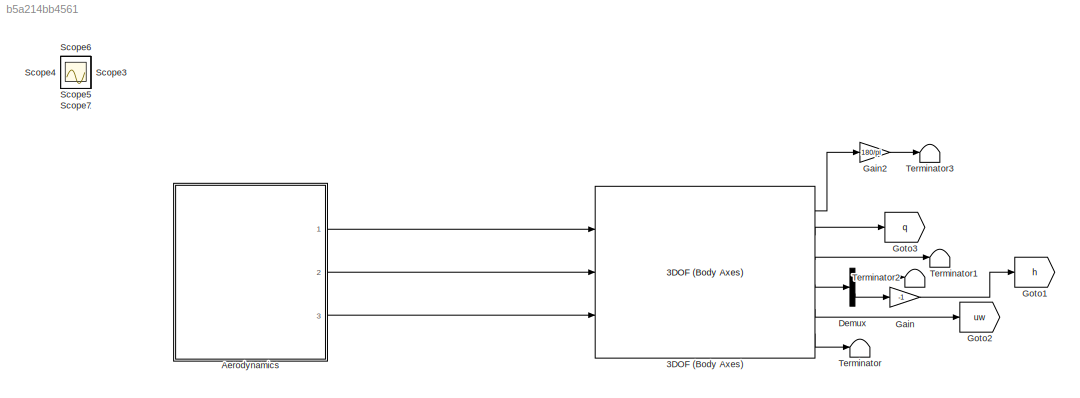
MODEL slx_b5a214bb4561
KIND model
CONFIG AbsTol = auto
CONFIG FixedStep = auto
CONFIG MaxStep = auto
CONFIG MinStep = auto
CONFIG RelTol = 1e-3
CONFIG SampleTimeConstraint = Unconstrained
CONFIG Solver = VariableStepAuto
CONFIG SolverMode = Auto
CONFIG SolverName = VariableStepAuto
CONFIG StartTime = 0.0
CONFIG StopTime = 100
BLOCK [Reference] 3DOF (Body Axes)  REF=aerolib3dof2/3DOF (Body Axes)
  Ports = [3, 6]
  SourceBlock = aerolib3dof2/3DOF (Body Axes)
  SourceType = 3DOF EoM
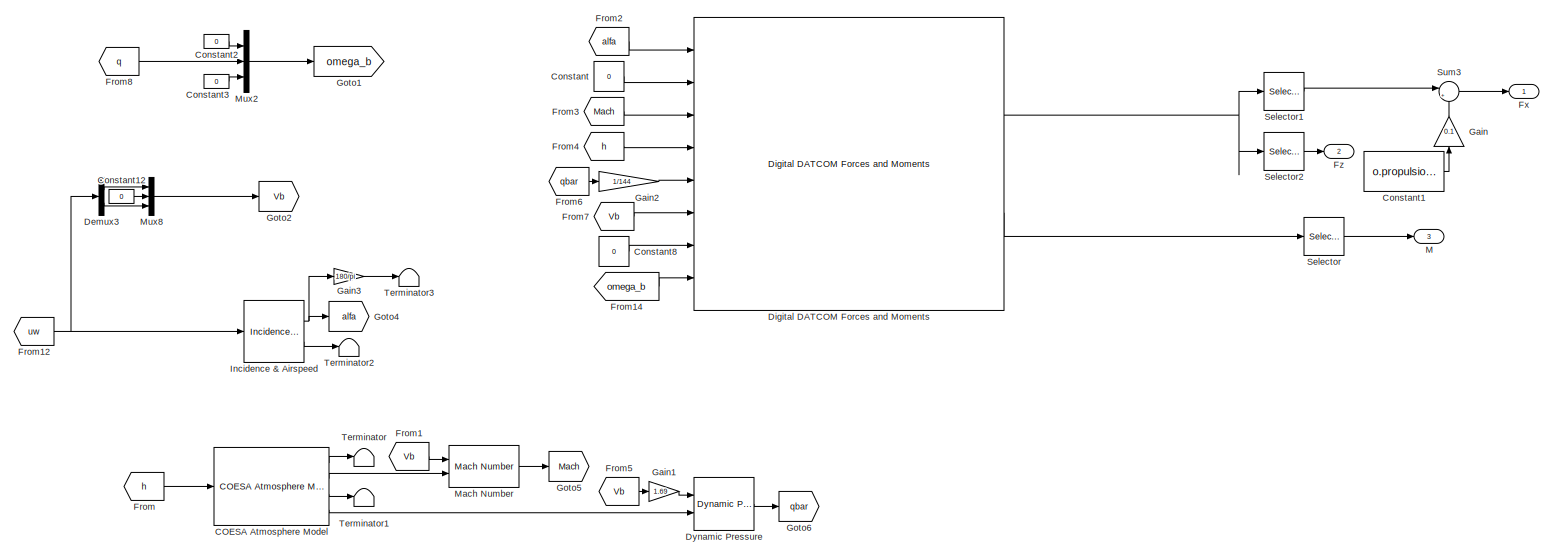
[diagram: Aerodynamics - part 1/1, most of the canvas]
BLOCK [SubSystem] Aerodynamics
  Ports = [0, 3]
  RequestExecContextInheritance = off
  Variant = off
BLOCK [Reference] Aerodynamics/COESA Atmosphere Model  REF=aerolibatmos2/COESA Atmosphere Model
  Ports = [1, 4]
  SourceBlock = aerolibatmos2/COESA Atmosphere Model
  SourceType = Atmosphere Model
BLOCK [Constant] Aerodynamics/Constant
  Value = 0
BLOCK [Constant] Aerodynamics/Constant1
  Value = o.propulsion.thrust
BLOCK [Constant] Aerodynamics/Constant12
  Value = 0
BLOCK [Constant] Aerodynamics/Constant2
  Value = 0
BLOCK [Constant] Aerodynamics/Constant3
  Value = 0
BLOCK [Constant] Aerodynamics/Constant8
  Value = 0
BLOCK [Demux] Aerodynamics/Demux3
  DisplayOption = bar
  Outputs = 2
  Ports = [1, 2]
BLOCK [Reference] Aerodynamics/Digital DATCOM Forces and Moments  REF=aerolibadyn/Digital DATCOM
Forces and Moments
  Ports = [8, 2]
  SourceBlock = aerolibadyn/Digital DATCOM\nForces and Moments
  SourceType = Digital DATCOM Forces and Moments
BLOCK [Reference] Aerodynamics/Dynamic Pressure  REF=aerolibasang/Dynamic Pressure
  Ports = [2, 1]
  SourceBlock = aerolibasang/Dynamic Pressure
  SourceType = Dynamic Pressure
BLOCK [From] Aerodynamics/From
  GotoTag = h
  TagVisibility = global
BLOCK [From] Aerodynamics/From1
  GotoTag = Vb
  TagVisibility = global
BLOCK [From] Aerodynamics/From12
  GotoTag = uw
  TagVisibility = global
BLOCK [From] Aerodynamics/From14
  GotoTag = omega_b
  TagVisibility = global
BLOCK [From] Aerodynamics/From2
  GotoTag = alfa
  TagVisibility = global
BLOCK [From] Aerodynamics/From3
  GotoTag = Mach
BLOCK [From] Aerodynamics/From4
  GotoTag = h
  TagVisibility = global
BLOCK [From] Aerodynamics/From5
  GotoTag = Vb
  TagVisibility = global
BLOCK [From] Aerodynamics/From6
  GotoTag = qbar
BLOCK [From] Aerodynamics/From7
  GotoTag = Vb
  TagVisibility = global
BLOCK [From] Aerodynamics/From8
  GotoTag = q
  TagVisibility = global
BLOCK [Outport] Aerodynamics/Fx
  IconDisplay = Port number
  Unit = N
BLOCK [Outport] Aerodynamics/Fz
  IconDisplay = Port number
  Port = 2
  Unit = N
BLOCK [Gain] Aerodynamics/Gain
  Gain = 0.1
  OutDataTypeStr = Inherit: Inherit via internal rule
  ParamDataTypeStr = Inherit: Inherit via internal rule
  SaturateOnIntegerOverflow = off
BLOCK [Gain] Aerodynamics/Gain1
  Gain = 1.69
  OutDataTypeStr = Inherit: Inherit via internal rule
  ParamDataTypeStr = Inherit: Inherit via internal rule
  SaturateOnIntegerOverflow = off
BLOCK [Gain] Aerodynamics/Gain2
  Gain = 1/144
  OutDataTypeStr = Inherit: Inherit via internal rule
  ParamDataTypeStr = Inherit: Inherit via internal rule
  SaturateOnIntegerOverflow = off
BLOCK [Gain] Aerodynamics/Gain3
  Gain = 180/pi
  OutDataTypeStr = Inherit: Inherit via internal rule
  ParamDataTypeStr = Inherit: Inherit via internal rule
  SaturateOnIntegerOverflow = off
BLOCK [Goto] Aerodynamics/Goto1
  GotoTag = omega_b
  TagVisibility = global
BLOCK [Goto] Aerodynamics/Goto2
  GotoTag = Vb
  TagVisibility = global
BLOCK [Goto] Aerodynamics/Goto4
  GotoTag = alfa
  TagVisibility = global
BLOCK [Goto] Aerodynamics/Goto5
  GotoTag = Mach
BLOCK [Goto] Aerodynamics/Goto6
  GotoTag = qbar
BLOCK [Reference] Aerodynamics/Incidence & Airspeed  REF=aerolibasang/Incidence 
& Airspeed
  Ports = [1, 2]
  SourceBlock = aerolibasang/Incidence \n& Airspeed
  SourceType = Incidence&Airspeed
BLOCK [Outport] Aerodynamics/M
  IconDisplay = Port number
  Port = 3
  Unit = N*m
BLOCK [Reference] Aerodynamics/Mach Number  REF=aerolibasang/Mach Number
  Ports = [2, 1]
  SourceBlock = aerolibasang/Mach Number
  SourceType = Mach Number
BLOCK [Mux] Aerodynamics/Mux2
  DisplayOption = bar
  Inputs = 3
  Ports = [3, 1]
BLOCK [Mux] Aerodynamics/Mux8
  DisplayOption = bar
  Inputs = 3
  Ports = [3, 1]
BLOCK [Selector] Aerodynamics/Selector
  IndexOptions = Index vector (dialog)
  Indices = 2
  InputPortWidth = 3
  OutputSizes = 1
  Ports = [1, 1]
BLOCK [Selector] Aerodynamics/Selector1
  IndexOptions = Index vector (dialog)
  Indices = 1
  InputPortWidth = 3
  OutputSizes = 1
  Ports = [1, 1]
BLOCK [Selector] Aerodynamics/Selector2
  IndexOptions = Index vector (dialog)
  Indices = 3
  InputPortWidth = 3
  OutputSizes = 1
  Ports = [1, 1]
BLOCK [Sum] Aerodynamics/Sum3
  IconShape = round
  InputSameDT = off
  Inputs = |++
  OutDataTypeStr = Inherit: Inherit via internal rule
  Ports = [2, 1]
  SaturateOnIntegerOverflow = off
BLOCK [Terminator] Aerodynamics/Terminator
BLOCK [Terminator] Aerodynamics/Terminator1
BLOCK [Terminator] Aerodynamics/Terminator2
BLOCK [Terminator] Aerodynamics/Terminator3
BLOCK [Demux] Demux
  DisplayOption = bar
  Outputs = 2
  Ports = [1, 2]
BLOCK [Gain] Gain
  Gain = -1
  OutDataTypeStr = Inherit: Inherit via internal rule
  ParamDataTypeStr = Inherit: Inherit via internal rule
  SaturateOnIntegerOverflow = off
BLOCK [Gain] Gain2
  Gain = 180/pi
  OutDataTypeStr = Inherit: Inherit via internal rule
  ParamDataTypeStr = Inherit: Inherit via internal rule
  SaturateOnIntegerOverflow = off
BLOCK [Goto] Goto1
  GotoTag = h
  TagVisibility = global
BLOCK [Goto] Goto2
  GotoTag = uw
  TagVisibility = global
BLOCK [Goto] Goto3
  GotoTag = q
  TagVisibility = global
BLOCK [Scope] Scope
  IOType = viewer
  Ports = []
  ScopeSpecificationString = Simulink.scopes.TimeScopeBlockCfg('CurrentConfiguration', extmgr.ConfigurationSet(extmgr.Configuration('Core','General UI',true),extmgr.Configuration('Core','Source UI',true),extmgr.Configuration('Sources','WiredSimulink',true,'DataLoggingVariableName','ScopeData1'),extmgr.Configuration('Visuals','Time Domain',true,'SerializedDisplays',{struct('MinYLimReal','1492.79969','MaxYLimReal','1563.87754',...<+1439ch>
BLOCK [Scope] Scope1
  IOType = viewer
  Ports = []
  ScopeSpecificationString = Simulink.scopes.TimeScopeBlockCfg('CurrentConfiguration', extmgr.ConfigurationSet(extmgr.Configuration('Core','General UI',true),extmgr.Configuration('Core','Source UI',true),extmgr.Configuration('Sources','WiredSimulink',true,'DataLoggingVariableName','ScopeData1'),extmgr.Configuration('Visuals','Time Domain',true,'SerializedDisplays',{struct('MinYLimReal','-0.0002','MaxYLimReal','0.00176','YLabe...<+1357ch>
BLOCK [Scope] Scope2
  IOType = viewer
  Ports = []
  ScopeSpecificationString = Simulink.scopes.TimeScopeBlockCfg('CurrentConfiguration', extmgr.ConfigurationSet(extmgr.Configuration('Core','General UI',true),extmgr.Configuration('Core','Source UI',true),extmgr.Configuration('Sources','WiredSimulink',true,'DataLoggingVariableName','ScopeData2'),extmgr.Configuration('Visuals','Time Domain',true,'SerializedDisplays',{struct('MinYLimReal','-0.04024','MaxYLimReal','0.00447','YLab...<+1384ch>
BLOCK [Scope] Scope3
  IOType = viewer
  Ports = []
  ScopeSpecificationString = Simulink.scopes.TimeScopeBlockCfg('CurrentConfiguration', extmgr.ConfigurationSet(extmgr.Configuration('Core','General UI',true),extmgr.Configuration('Core','Source UI',true),extmgr.Configuration('Sources','WiredSimulink',true,'DataLoggingVariableName','ScopeData3'),extmgr.Configuration('Visuals','Time Domain',true,'SerializedDisplays',{struct('MinYLimReal','-4.16211','MaxYLimReal','0.12538','YLab...<+1420ch>
BLOCK [Scope] Scope4
  IOType = viewer
  Ports = []
  ScopeSpecificationString = Simulink.scopes.TimeScopeBlockCfg('CurrentConfiguration', extmgr.ConfigurationSet(extmgr.Configuration('Core','General UI',true),extmgr.Configuration('Core','Source UI',true),extmgr.Configuration('Sources','WiredSimulink',true,'DataLoggingVariableName','ScopeData1'),extmgr.Configuration('Visuals','Time Domain',true,'SerializedDisplays',{struct('MinYLimReal','-30.31816','MaxYLimReal','92.02201','YL...<+1535ch>
BLOCK [Scope] Scope5
  IOType = viewer
  Ports = []
  ScopeSpecificationString = Simulink.scopes.TimeScopeBlockCfg('CurrentConfiguration', extmgr.ConfigurationSet(extmgr.Configuration('Core','General UI',true),extmgr.Configuration('Core','Source UI',true),extmgr.Configuration('Sources','WiredSimulink',true,'DataLoggingVariableName','ScopeData1'),extmgr.Configuration('Visuals','Time Domain',true,'SerializedDisplays',{struct('MinYLimReal','-6.875','MaxYLimReal','61.875','YLabelR...<+1383ch>
BLOCK [Scope] Scope6
  IOType = viewer
  Ports = []
  ScopeSpecificationString = Simulink.scopes.TimeScopeBlockCfg('CurrentConfiguration', extmgr.ConfigurationSet(extmgr.Configuration('Core','General UI',true),extmgr.Configuration('Core','Source UI',true),extmgr.Configuration('Sources','WiredSimulink',true,'DataLoggingVariableName','ScopeData2'),extmgr.Configuration('Visuals','Time Domain',true,'SerializedDisplays',{struct('MinYLimReal','-5.80294','MaxYLimReal','13.91177','YLa...<+1368ch>
BLOCK [Scope] Scope7
  IOType = viewer
  Ports = []
  ScopeSpecificationString = Simulink.scopes.TimeScopeBlockCfg('CurrentConfiguration', extmgr.ConfigurationSet(extmgr.Configuration('Core','General UI',true),extmgr.Configuration('Core','Source UI',true),extmgr.Configuration('Sources','WiredSimulink',true,'DataLoggingVariableName','ScopeData1'),extmgr.Configuration('Visuals','Time Domain',true,'SerializedDisplays',{struct('MinYLimReal','-0.50099','MaxYLimReal','4.50889','YLab...<+1364ch>
BLOCK [Terminator] Terminator
BLOCK [Terminator] Terminator1
BLOCK [Terminator] Terminator2
BLOCK [Terminator] Terminator3
LINE 3DOF (Body Axes):1 -> Gain2:1
LINE 3DOF (Body Axes):2 -> Goto3:1
LINE 3DOF (Body Axes):3 -> Terminator1:1
LINE 3DOF (Body Axes):4 -> Demux:1
LINE 3DOF (Body Axes):5 -> Goto2:1
LINE 3DOF (Body Axes):6 -> Terminator:1
LINE Aerodynamics/COESA Atmosphere Model:1 -> Aerodynamics/Terminator:1
LINE Aerodynamics/COESA Atmosphere Model:2 -> Aerodynamics/Mach Number:2
LINE Aerodynamics/COESA Atmosphere Model:3 -> Aerodynamics/Terminator1:1
LINE Aerodynamics/COESA Atmosphere Model:4 -> Aerodynamics/Dynamic Pressure:2
LINE Aerodynamics/Constant12:1 -> Aerodynamics/Mux8:2
LINE Aerodynamics/Constant1:1 -> Aerodynamics/Gain:1
LINE Aerodynamics/Constant2:1 -> Aerodynamics/Mux2:1
LINE Aerodynamics/Constant3:1 -> Aerodynamics/Mux2:3
LINE Aerodynamics/Constant8:1 -> Aerodynamics/Digital DATCOM Forces and Moments:7
LINE Aerodynamics/Constant:1 -> Aerodynamics/Digital DATCOM Forces and Moments:2
LINE Aerodynamics/Demux3:1 -> Aerodynamics/Mux8:1
LINE Aerodynamics/Demux3:2 -> Aerodynamics/Mux8:3
NET Aerodynamics/Digital DATCOM Forces and Moments:1 -> Aerodynamics/Selector1:1, Aerodynamics/Selector2:1
LINE Aerodynamics/Digital DATCOM Forces and Moments:2 -> Aerodynamics/Selector:1
LINE Aerodynamics/Dynamic Pressure:1 -> Aerodynamics/Goto6:1
NET Aerodynamics/From12:1 -> Aerodynamics/Demux3:1, Aerodynamics/Incidence & Airspeed:1
LINE Aerodynamics/From14:1 -> Aerodynamics/Digital DATCOM Forces and Moments:8
LINE Aerodynamics/From1:1 -> Aerodynamics/Mach Number:1
LINE Aerodynamics/From2:1 -> Aerodynamics/Digital DATCOM Forces and Moments:1
LINE Aerodynamics/From3:1 -> Aerodynamics/Digital DATCOM Forces and Moments:3
LINE Aerodynamics/From4:1 -> Aerodynamics/Digital DATCOM Forces and Moments:4
LINE Aerodynamics/From5:1 -> Aerodynamics/Gain1:1
LINE Aerodynamics/From6:1 -> Aerodynamics/Gain2:1
LINE Aerodynamics/From7:1 -> Aerodynamics/Digital DATCOM Forces and Moments:6
LINE Aerodynamics/From8:1 -> Aerodynamics/Mux2:2
LINE Aerodynamics/From:1 -> Aerodynamics/COESA Atmosphere Model:1
LINE Aerodynamics/Gain1:1 -> Aerodynamics/Dynamic Pressure:1
LINE Aerodynamics/Gain2:1 -> Aerodynamics/Digital DATCOM Forces and Moments:5
LINE Aerodynamics/Gain3:1 -> Aerodynamics/Terminator3:1
LINE Aerodynamics/Gain:1 -> Aerodynamics/Sum3:2
NET Aerodynamics/Incidence & Airspeed:1 -> Aerodynamics/Gain3:1, Aerodynamics/Goto4:1
LINE Aerodynamics/Incidence & Airspeed:2 -> Aerodynamics/Terminator2:1
LINE Aerodynamics/Mach Number:1 -> Aerodynamics/Goto5:1
LINE Aerodynamics/Mux2:1 -> Aerodynamics/Goto1:1
LINE Aerodynamics/Mux8:1 -> Aerodynamics/Goto2:1
LINE Aerodynamics/Selector1:1 -> Aerodynamics/Sum3:1
LINE Aerodynamics/Selector2:1 -> Aerodynamics/Fz:1
LINE Aerodynamics/Selector:1 -> Aerodynamics/M:1
LINE Aerodynamics/Sum3:1 -> Aerodynamics/Fx:1
LINE Aerodynamics:1 -> 3DOF (Body Axes):1
LINE Aerodynamics:2 -> 3DOF (Body Axes):2
LINE Aerodynamics:3 -> 3DOF (Body Axes):3
LINE Demux:1 -> Terminator2:1
LINE Demux:2 -> Gain:1
LINE Gain2:1 -> Terminator3:1
LINE Gain:1 -> Goto1:1
note: NET lines group one-source signal fan-out (src -> all destinations, sorted); 1:1 wires keep LINE
